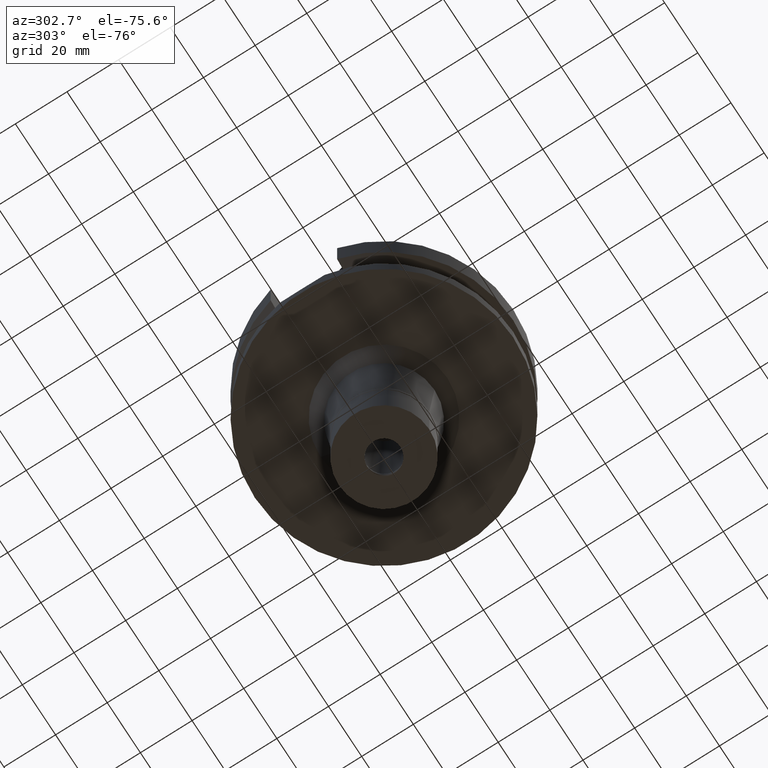
[diagram: clean part render]
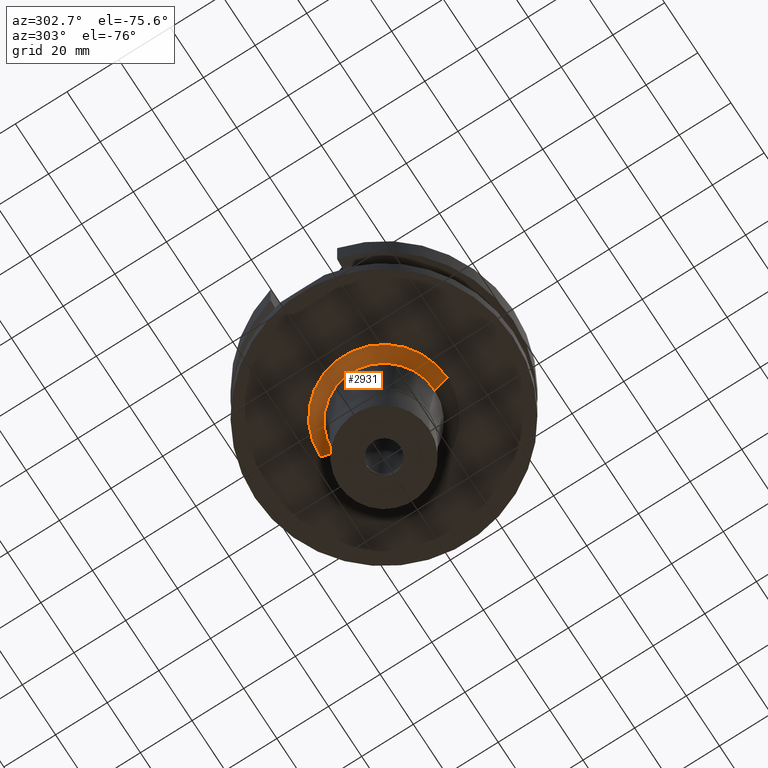
[diagram: same view with one face highlighted and labeled with its STEP entity id]
A machine part, auxiliary view. The second image highlights one B-rep face of the part: STEP entity #2931.
In plain terms, the highlighted conical surface has half-angle 45 deg.
Its self-contained STEP definition (entity closure, byte-faithful):
#49 = DIRECTION ( 'NONE',  ( 0.0000000000000000000, 0.0000000000000000000, -1.000000000000000000 ) ) ;
#99 = LINE ( 'NONE', #2440, #674 ) ;
#199 = CARTESIAN_POINT ( 'NONE',  ( 0.0000000000000000000, -24.57348132555999953, -38.00000000000000000 ) ) ;
#332 = LINE ( 'NONE', #760, #1213 ) ;
#674 = VECTOR ( 'NONE', #2691, 1000.000000000000000 ) ;
#760 = CARTESIAN_POINT ( 'NONE',  ( 0.0000000000000000000, -24.57348132555999953, -38.00000000000000000 ) ) ;
#765 = AXIS2_PLACEMENT_3D ( 'NONE', #2123, #1899, #962 ) ;
#771 = CARTESIAN_POINT ( 'NONE',  ( 0.0000000000000000000, 19.57348132555999953, -43.00000000000000000 ) ) ;
#819 = ORIENTED_EDGE ( 'NONE', *, *, #1918, .F. ) ;
#962 = DIRECTION ( 'NONE',  ( 0.0000000000000000000, -1.000000000000000000, 0.0000000000000000000 ) ) ;
#1035 = CARTESIAN_POINT ( 'NONE',  ( 0.0000000000000000000, -19.57348132555999953, -43.00000000000000000 ) ) ;
#1155 = VERTEX_POINT ( 'NONE', #199 ) ;
#1213 = VECTOR ( 'NONE', #2257, 1000.000000000000000 ) ;
#1298 = FACE_OUTER_BOUND ( 'NONE', #2416, .T. ) ;
#1321 = AXIS2_PLACEMENT_3D ( 'NONE', #2452, #49, #2934 ) ;
#1328 = ORIENTED_EDGE ( 'NONE', *, *, #2952, .F. ) ;
#1418 = AXIS2_PLACEMENT_3D ( 'NONE', #1509, #2727, #2923 ) ;
#1509 = CARTESIAN_POINT ( 'NONE',  ( 0.0000000000000000000, 0.0000000000000000000, -40.50000000000000000 ) ) ;
#1677 = ORIENTED_EDGE ( 'NONE', *, *, #2038, .T. ) ;
#1715 = CIRCLE ( 'NONE', #765, 19.57348132555999953 ) ;
#1899 = DIRECTION ( 'NONE',  ( 0.0000000000000000000, 0.0000000000000000000, -1.000000000000000000 ) ) ;
#1918 = EDGE_CURVE ( 'NONE', #2026, #2129, #1715, .T. ) ;
#1974 = CONICAL_SURFACE ( 'NONE', #1418, 22.07348132555999953, 0.7853981633972997312 ) ;
#2026 = VERTEX_POINT ( 'NONE', #1035 ) ;
#2038 = EDGE_CURVE ( 'NONE', #1155, #2717, #2987, .T. ) ;
#2123 = CARTESIAN_POINT ( 'NONE',  ( 0.0000000000000000000, 0.0000000000000000000, -43.00000000000000000 ) ) ;
#2129 = VERTEX_POINT ( 'NONE', #771 ) ;
#2257 = DIRECTION ( 'NONE',  ( 0.0000000000000000000, 0.7071067811864980568, -0.7071067811865969777 ) ) ;
#2416 = EDGE_LOOP ( 'NONE', ( #819, #1328, #1677, #3061 ) ) ;
#2440 = CARTESIAN_POINT ( 'NONE',  ( 0.0000000000000000000, 24.57348132555999953, -38.00000000000000000 ) ) ;
#2452 = CARTESIAN_POINT ( 'NONE',  ( 0.0000000000000000000, 0.0000000000000000000, -38.00000000000000000 ) ) ;
#2465 = CARTESIAN_POINT ( 'NONE',  ( 0.0000000000000000000, 24.57348132555999953, -38.00000000000000000 ) ) ;
#2691 = DIRECTION ( 'NONE',  ( 0.0000000000000000000, -0.7071067811864980568, -0.7071067811865969777 ) ) ;
#2717 = VERTEX_POINT ( 'NONE', #2465 ) ;
#2727 = DIRECTION ( 'NONE',  ( 0.0000000000000000000, 0.0000000000000000000, 1.000000000000000000 ) ) ;
#2828 = EDGE_CURVE ( 'NONE', #2717, #2129, #99, .T. ) ;
#2923 = DIRECTION ( 'NONE',  ( 0.0000000000000000000, 1.000000000000000000, 0.0000000000000000000 ) ) ;
#2931 = ADVANCED_FACE ( 'NONE', ( #1298 ), #1974, .T. ) ;
#2934 = DIRECTION ( 'NONE',  ( 0.0000000000000000000, -1.000000000000000000, 0.0000000000000000000 ) ) ;
#2952 = EDGE_CURVE ( 'NONE', #1155, #2026, #332, .T. ) ;
#2987 = CIRCLE ( 'NONE', #1321, 24.57348132555999953 ) ;
#3061 = ORIENTED_EDGE ( 'NONE', *, *, #2828, .T. ) ;